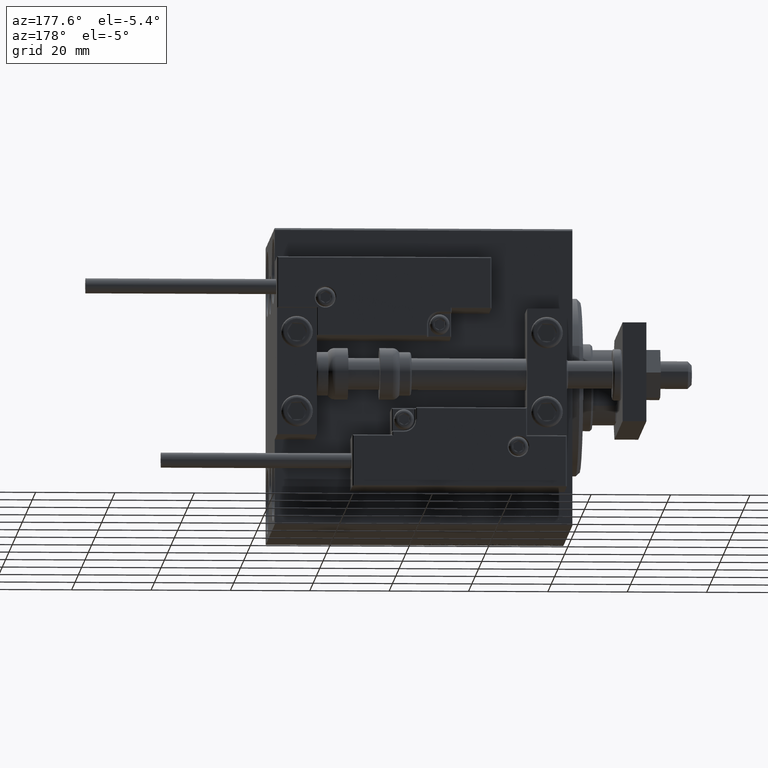
[diagram: clean part render]
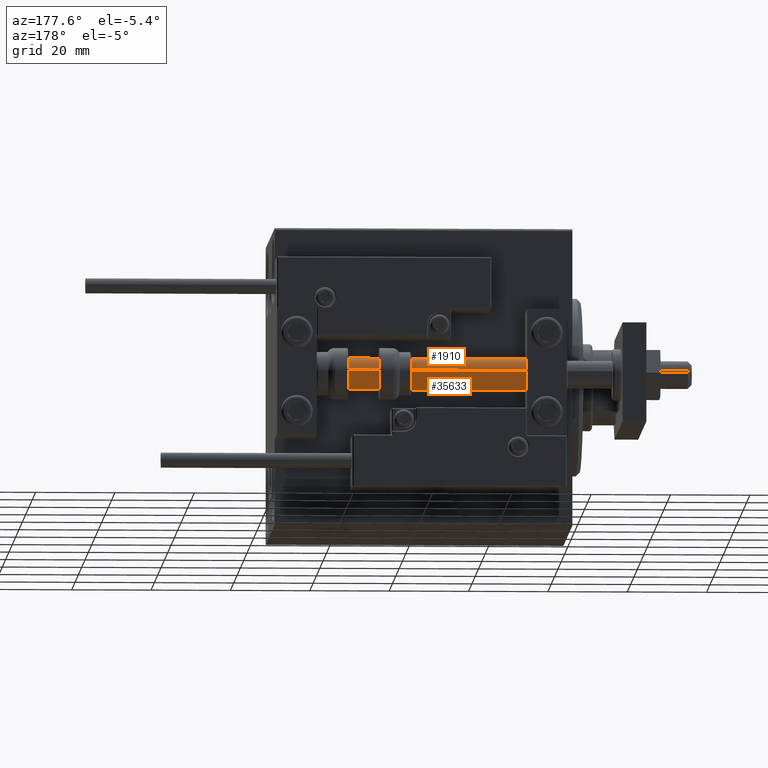
[diagram: same view with one multi-face feature highlighted, each face labeled with its STEP entity id]
A machine part, auxiliary view. The highlighted faces form ONE feature: a constant-radius fillet chain: 2 tangent blend faces with common blend radius 4 mm. The faces share edges in the B-rep.
Their STEP definitions:
[1] entity #1910 (Cylinder):
#365 = VERTEX_POINT ( 'NONE', #31071 ) ;
#443 = EDGE_CURVE ( 'NONE', #365, #46819, #46229, .T. ) ;
#916 = ORIENTED_EDGE ( 'NONE', *, *, #13584, .F. ) ;
#1753 = EDGE_CURVE ( 'NONE', #46819, #20975, #21859, .T. ) ;
#1910 = ADVANCED_FACE ( 'NONE', ( #36866 ), #41155, .T. ) ;
#2811 = AXIS2_PLACEMENT_3D ( 'NONE', #49627, #41051, #44858 ) ;
#2841 = ORIENTED_EDGE ( 'NONE', *, *, #1753, .T. ) ;
#3181 = CARTESIAN_POINT ( 'NONE',  ( -4.000000000000000000, 0.000000000000000000, 2.000000000000029310 ) ) ;
#7478 = LINE ( 'NONE', #30694, #11277 ) ;
#11277 = VECTOR ( 'NONE', #44922, 1000.000000000000000 ) ;
#12137 = DIRECTION ( 'NONE',  ( -0.000000000000000000, -0.000000000000000000, -1.000000000000000000 ) ) ;
#13584 = EDGE_CURVE ( 'NONE', #365, #26593, #24555, .T. ) ;
#16439 = CARTESIAN_POINT ( 'NONE',  ( 0.000000000000000000, 0.000000000000000000, 2.000000000000029310 ) ) ;
#20195 = VECTOR ( 'NONE', #12137, 1000.000000000000000 ) ;
#20216 = DIRECTION ( 'NONE',  ( -0.000000000000000000, -0.000000000000000000, 1.000000000000000000 ) ) ;
#20975 = VERTEX_POINT ( 'NONE', #3181 ) ;
#21859 = CIRCLE ( 'NONE', #48551, 4.000000000000000000 ) ;
#24555 = CIRCLE ( 'NONE', #2811, 4.000000000000000000 ) ;
#24746 = DIRECTION ( 'NONE',  ( -1.000000000000000000, 0.000000000000000000, 0.000000000000000000 ) ) ;
#25915 = ORIENTED_EDGE ( 'NONE', *, *, #443, .T. ) ;
#26593 = VERTEX_POINT ( 'NONE', #32851 ) ;
#28704 = EDGE_LOOP ( 'NONE', ( #916, #25915, #2841, #46287 ) ) ;
#30571 = CARTESIAN_POINT ( 'NONE',  ( 4.000000000000000000, 4.898587196589412829E-16, 75.00000000000000000 ) ) ;
#30615 = EDGE_CURVE ( 'NONE', #26593, #20975, #7478, .T. ) ;
#30694 = CARTESIAN_POINT ( 'NONE',  ( -4.000000000000000000, 0.000000000000000000, 75.00000000000000000 ) ) ;
#31071 = CARTESIAN_POINT ( 'NONE',  ( 4.000000000000000000, 4.898587196589412829E-16, 75.00000000000000000 ) ) ;
#31834 = DIRECTION ( 'NONE',  ( 1.000000000000000000, 0.000000000000000000, 0.000000000000000000 ) ) ;
#32851 = CARTESIAN_POINT ( 'NONE',  ( -4.000000000000000000, 0.000000000000000000, 75.00000000000000000 ) ) ;
#33334 = CARTESIAN_POINT ( 'NONE',  ( 0.000000000000000000, 0.000000000000000000, 75.00000000000000000 ) ) ;
#34345 = CARTESIAN_POINT ( 'NONE',  ( 4.000000000000000000, 4.898587196589412829E-16, 2.000000000000029310 ) ) ;
#34800 = AXIS2_PLACEMENT_3D ( 'NONE', #33334, #36615, #24746 ) ;
#36615 = DIRECTION ( 'NONE',  ( -0.000000000000000000, -0.000000000000000000, -1.000000000000000000 ) ) ;
#36866 = FACE_OUTER_BOUND ( 'NONE', #28704, .T. ) ;
#41051 = DIRECTION ( 'NONE',  ( 0.000000000000000000, 0.000000000000000000, 1.000000000000000000 ) ) ;
#41155 = CYLINDRICAL_SURFACE ( 'NONE', #34800, 4.000000000000000000 ) ;
#44858 = DIRECTION ( 'NONE',  ( 1.000000000000000000, 0.000000000000000000, 0.000000000000000000 ) ) ;
#44922 = DIRECTION ( 'NONE',  ( -0.000000000000000000, -0.000000000000000000, -1.000000000000000000 ) ) ;
#46229 = LINE ( 'NONE', #30571, #20195 ) ;
#46287 = ORIENTED_EDGE ( 'NONE', *, *, #30615, .F. ) ;
#46819 = VERTEX_POINT ( 'NONE', #34345 ) ;
#48551 = AXIS2_PLACEMENT_3D ( 'NONE', #16439, #20216, #31834 ) ;
#49627 = CARTESIAN_POINT ( 'NONE',  ( 0.000000000000000000, 0.000000000000000000, 75.00000000000000000 ) ) ;
[2] entity #35633 (Cylinder):
#365 = VERTEX_POINT ( 'NONE', #31071 ) ;
#443 = EDGE_CURVE ( 'NONE', #365, #46819, #46229, .T. ) ;
#2864 = FACE_OUTER_BOUND ( 'NONE', #28556, .T. ) ;
#3181 = CARTESIAN_POINT ( 'NONE',  ( -4.000000000000000000, 0.000000000000000000, 2.000000000000029310 ) ) ;
#4457 = EDGE_CURVE ( 'NONE', #20975, #46819, #45374, .T. ) ;
#5079 = ORIENTED_EDGE ( 'NONE', *, *, #40872, .F. ) ;
#5752 = AXIS2_PLACEMENT_3D ( 'NONE', #37918, #49536, #33885 ) ;
#5915 = ORIENTED_EDGE ( 'NONE', *, *, #30615, .T. ) ;
#7478 = LINE ( 'NONE', #30694, #11277 ) ;
#10053 = DIRECTION ( 'NONE',  ( -0.000000000000000000, -0.000000000000000000, 1.000000000000000000 ) ) ;
#11277 = VECTOR ( 'NONE', #44922, 1000.000000000000000 ) ;
#12137 = DIRECTION ( 'NONE',  ( -0.000000000000000000, -0.000000000000000000, -1.000000000000000000 ) ) ;
#12139 = CARTESIAN_POINT ( 'NONE',  ( 0.000000000000000000, 0.000000000000000000, 75.00000000000000000 ) ) ;
#13830 = CARTESIAN_POINT ( 'NONE',  ( 0.000000000000000000, 0.000000000000000000, 2.000000000000029310 ) ) ;
#17931 = AXIS2_PLACEMENT_3D ( 'NONE', #13830, #10053, #29484 ) ;
#20195 = VECTOR ( 'NONE', #12137, 1000.000000000000000 ) ;
#20975 = VERTEX_POINT ( 'NONE', #3181 ) ;
#21116 = CIRCLE ( 'NONE', #23535, 4.000000000000000000 ) ;
#23535 = AXIS2_PLACEMENT_3D ( 'NONE', #12139, #28517, #43929 ) ;
#26593 = VERTEX_POINT ( 'NONE', #32851 ) ;
#28517 = DIRECTION ( 'NONE',  ( 0.000000000000000000, 0.000000000000000000, 1.000000000000000000 ) ) ;
#28556 = EDGE_LOOP ( 'NONE', ( #47781, #5079, #5915, #37282 ) ) ;
#29484 = DIRECTION ( 'NONE',  ( 1.000000000000000000, 0.000000000000000000, 0.000000000000000000 ) ) ;
#30571 = CARTESIAN_POINT ( 'NONE',  ( 4.000000000000000000, 4.898587196589412829E-16, 75.00000000000000000 ) ) ;
#30615 = EDGE_CURVE ( 'NONE', #26593, #20975, #7478, .T. ) ;
#30694 = CARTESIAN_POINT ( 'NONE',  ( -4.000000000000000000, 0.000000000000000000, 75.00000000000000000 ) ) ;
#31071 = CARTESIAN_POINT ( 'NONE',  ( 4.000000000000000000, 4.898587196589412829E-16, 75.00000000000000000 ) ) ;
#32851 = CARTESIAN_POINT ( 'NONE',  ( -4.000000000000000000, 0.000000000000000000, 75.00000000000000000 ) ) ;
#33885 = DIRECTION ( 'NONE',  ( -1.000000000000000000, 0.000000000000000000, 0.000000000000000000 ) ) ;
#34345 = CARTESIAN_POINT ( 'NONE',  ( 4.000000000000000000, 4.898587196589412829E-16, 2.000000000000029310 ) ) ;
#35633 = ADVANCED_FACE ( 'NONE', ( #2864 ), #48800, .T. ) ;
#37282 = ORIENTED_EDGE ( 'NONE', *, *, #4457, .T. ) ;
#37918 = CARTESIAN_POINT ( 'NONE',  ( 0.000000000000000000, 0.000000000000000000, 75.00000000000000000 ) ) ;
#40872 = EDGE_CURVE ( 'NONE', #26593, #365, #21116, .T. ) ;
#43929 = DIRECTION ( 'NONE',  ( 1.000000000000000000, 0.000000000000000000, 0.000000000000000000 ) ) ;
#44922 = DIRECTION ( 'NONE',  ( -0.000000000000000000, -0.000000000000000000, -1.000000000000000000 ) ) ;
#45374 = CIRCLE ( 'NONE', #17931, 4.000000000000000000 ) ;
#46229 = LINE ( 'NONE', #30571, #20195 ) ;
#46819 = VERTEX_POINT ( 'NONE', #34345 ) ;
#47781 = ORIENTED_EDGE ( 'NONE', *, *, #443, .F. ) ;
#48800 = CYLINDRICAL_SURFACE ( 'NONE', #5752, 4.000000000000000000 ) ;
#49536 = DIRECTION ( 'NONE',  ( -0.000000000000000000, -0.000000000000000000, -1.000000000000000000 ) ) ;